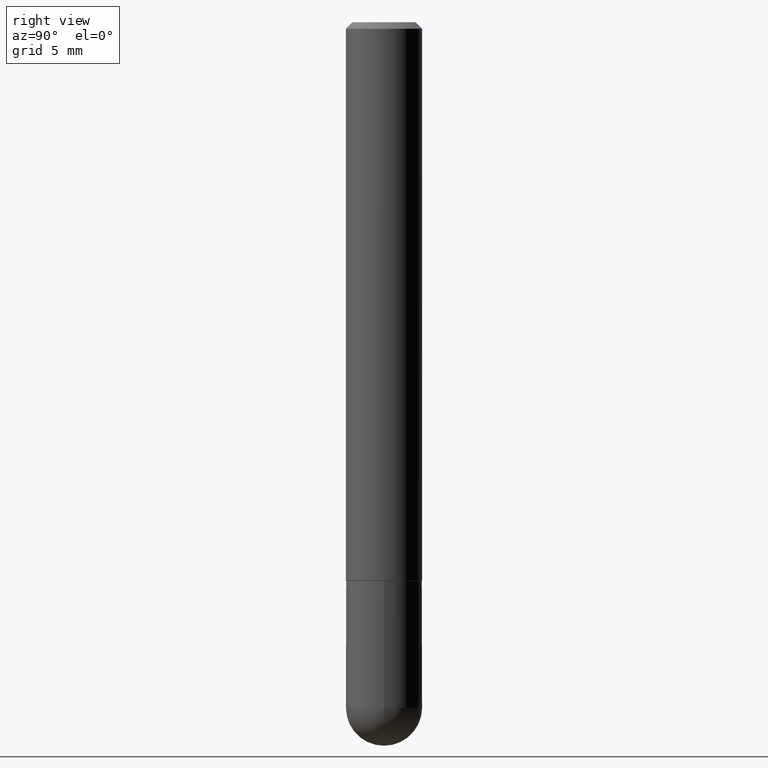
[diagram: clean part render]
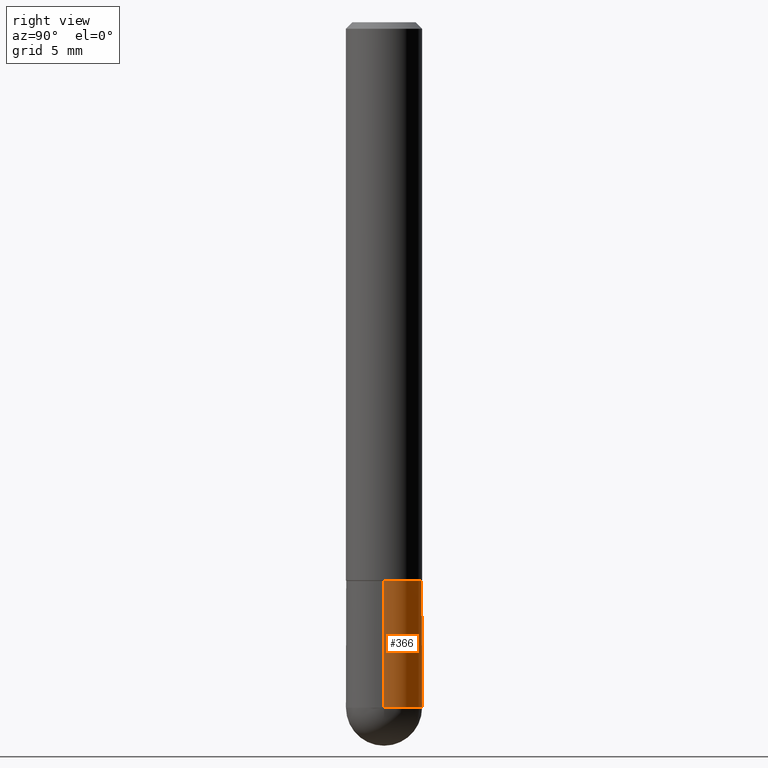
[diagram: same view with one face highlighted and labeled with its STEP entity id]
A machine part, right view. The second image highlights one B-rep face of the part: STEP entity #366.
In plain terms, the highlighted cylindrical surface (partial cylindrical patch) has radius 2.9997 mm, axis along (-0, 0, 1).
Its self-contained STEP definition (entity closure, byte-faithful):
#8 = DIRECTION ( 'NONE',  ( 1.000000000000000000, -6.982962677686265133E-15, 0.000000000000000000 ) ) ;
#14 = DIRECTION ( 'NONE',  ( -2.445468806185136597E-29, 3.491481338843145583E-15, 1.000000000000000000 ) ) ;
#22 = CARTESIAN_POINT ( 'NONE',  ( -0.1180999999999999966, -5.896440253896576841E-15, -2.125999999999999890 ) ) ;
#48 = EDGE_CURVE ( 'NONE', #383, #141, #296, .T. ) ;
#50 = CARTESIAN_POINT ( 'NONE',  ( 0.1180999999999999966, -6.872981015512729341E-15, -1.732299999999999951 ) ) ;
#54 = LINE ( 'NONE', #308, #317 ) ;
#55 = DIRECTION ( 'NONE',  ( -2.445468806185136597E-29, 3.491481338843145583E-15, 1.000000000000000000 ) ) ;
#60 = LINE ( 'NONE', #88, #309 ) ;
#67 = EDGE_CURVE ( 'NONE', #141, #319, #132, .T. ) ;
#78 = CARTESIAN_POINT ( 'NONE',  ( -0.1180999999999999966, -5.896440253896576052E-15, -1.732299999999999951 ) ) ;
#84 = FACE_OUTER_BOUND ( 'NONE', #100, .T. ) ;
#88 = CARTESIAN_POINT ( 'NONE',  ( 0.1180999999999999966, -8.246878922347480654E-16, 5.758764772215000440E-30 ) ) ;
#98 = DIRECTION ( 'NONE',  ( -2.445468806185136597E-29, 3.491481338843145583E-15, 1.000000000000000000 ) ) ;
#100 = EDGE_LOOP ( 'NONE', ( #146, #400, #224, #179, #153 ) ) ;
#109 = DIRECTION ( 'NONE',  ( 1.000000000000000000, -6.982962677686265133E-15, 0.000000000000000000 ) ) ;
#115 = CYLINDRICAL_SURFACE ( 'NONE', #183, 0.1180999999999999966 ) ;
#129 = VERTEX_POINT ( 'NONE', #50 ) ;
#132 = CIRCLE ( 'NONE', #401, 0.1180999999999999966 ) ;
#137 = CARTESIAN_POINT ( 'NONE',  ( 4.236285612954512392E-29, -6.048293123277981078E-15, -1.732299999999999951 ) ) ;
#140 = CARTESIAN_POINT ( 'NONE',  ( 8.246878922347992427E-16, 0.1180999999999924471, -2.126000000000000334 ) ) ;
#141 = VERTEX_POINT ( 'NONE', #140 ) ;
#146 = ORIENTED_EDGE ( 'NONE', *, *, #67, .T. ) ;
#148 = DIRECTION ( 'NONE',  ( -2.445468806185136877E-29, 3.491481338843145188E-15, 1.000000000000000000 ) ) ;
#153 = ORIENTED_EDGE ( 'NONE', *, *, #48, .T. ) ;
#174 = CARTESIAN_POINT ( 'NONE',  ( 0.1180999999999999966, -7.560279117064003300E-15, -2.125999999999999890 ) ) ;
#179 = ORIENTED_EDGE ( 'NONE', *, *, #398, .F. ) ;
#183 = AXIS2_PLACEMENT_3D ( 'NONE', #380, #55, #407 ) ;
#185 = EDGE_CURVE ( 'NONE', #129, #220, #278, .T. ) ;
#220 = VERTEX_POINT ( 'NONE', #78 ) ;
#224 = ORIENTED_EDGE ( 'NONE', *, *, #185, .F. ) ;
#264 = DIRECTION ( 'NONE',  ( -2.445468806185136597E-29, 3.491481338843145583E-15, 1.000000000000000000 ) ) ;
#278 = CIRCLE ( 'NONE', #323, 0.1180999999999999966 ) ;
#292 = CARTESIAN_POINT ( 'NONE',  ( 5.199066681949599750E-29, -7.422889326380526631E-15, -2.125999999999999890 ) ) ;
#296 = CIRCLE ( 'NONE', #343, 0.1180999999999999966 ) ;
#308 = CARTESIAN_POINT ( 'NONE',  ( -0.1180999999999999966, 8.391509709326782957E-16, -5.809262341591043784E-30 ) ) ;
#309 = VECTOR ( 'NONE', #148, 39.37007874015748143 ) ;
#311 = DIRECTION ( 'NONE',  ( -2.445468806185136877E-29, 3.491481338843145188E-15, 1.000000000000000000 ) ) ;
#317 = VECTOR ( 'NONE', #311, 39.37007874015748143 ) ;
#319 = VERTEX_POINT ( 'NONE', #22 ) ;
#323 = AXIS2_PLACEMENT_3D ( 'NONE', #137, #264, #396 ) ;
#333 = EDGE_CURVE ( 'NONE', #319, #220, #54, .T. ) ;
#343 = AXIS2_PLACEMENT_3D ( 'NONE', #292, #98, #8 ) ;
#362 = CARTESIAN_POINT ( 'NONE',  ( 5.199066681949599750E-29, -7.422889326380526631E-15, -2.125999999999999890 ) ) ;
#366 = ADVANCED_FACE ( 'NONE', ( #84 ), #115, .T. ) ;
#380 = CARTESIAN_POINT ( 'NONE',  ( 0.000000000000000000, 0.000000000000000000, 0.000000000000000000 ) ) ;
#383 = VERTEX_POINT ( 'NONE', #174 ) ;
#396 = DIRECTION ( 'NONE',  ( 1.000000000000000000, -6.982962677686265133E-15, 0.000000000000000000 ) ) ;
#398 = EDGE_CURVE ( 'NONE', #383, #129, #60, .T. ) ;
#400 = ORIENTED_EDGE ( 'NONE', *, *, #333, .T. ) ;
#401 = AXIS2_PLACEMENT_3D ( 'NONE', #362, #14, #109 ) ;
#407 = DIRECTION ( 'NONE',  ( 1.000000000000000000, -6.982962677686266711E-15, 4.876176775795936353E-29 ) ) ;